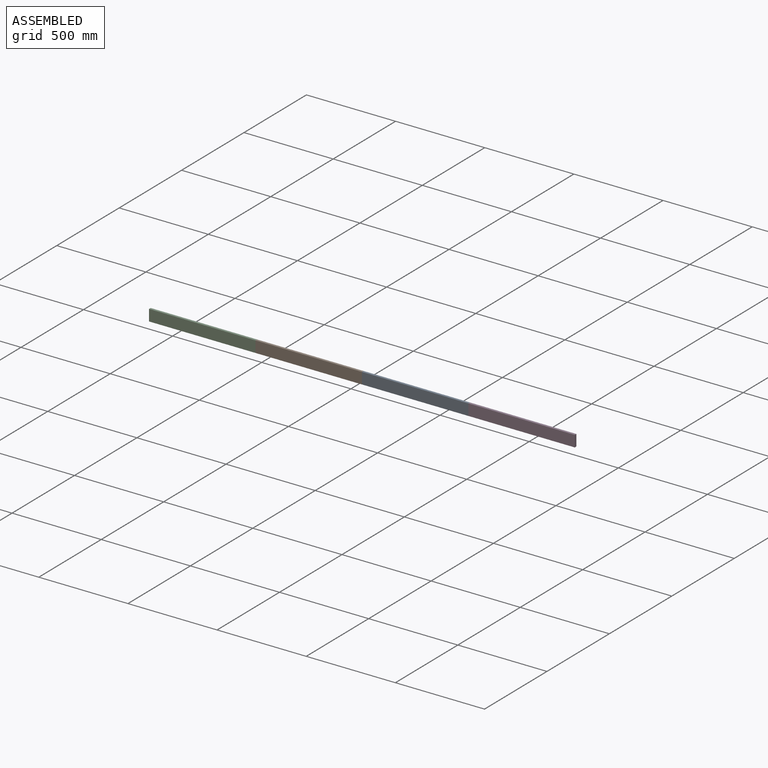
[diagram: assembled view]
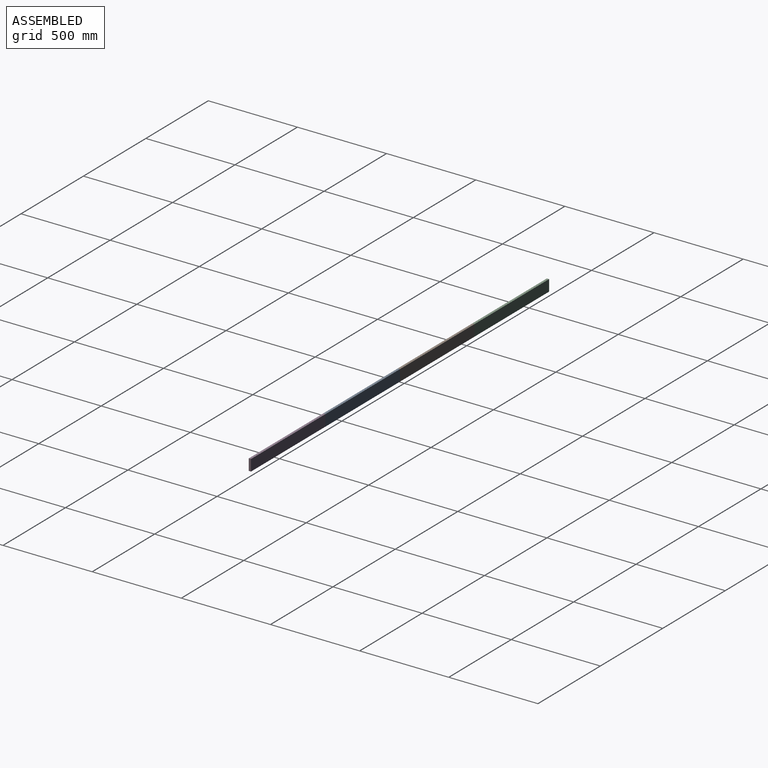
[diagram: assembled view, second angle]
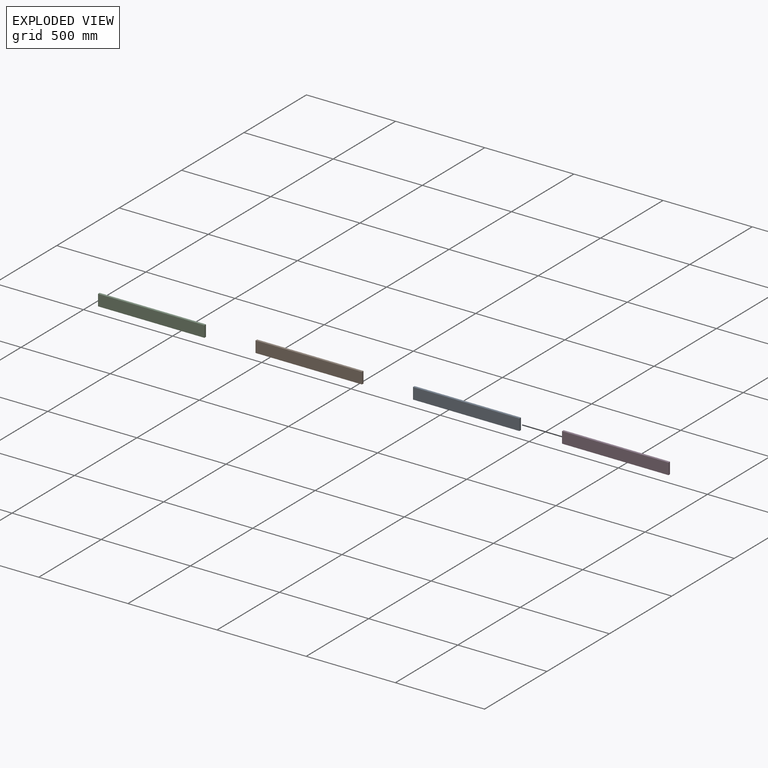
[diagram: exploded view]
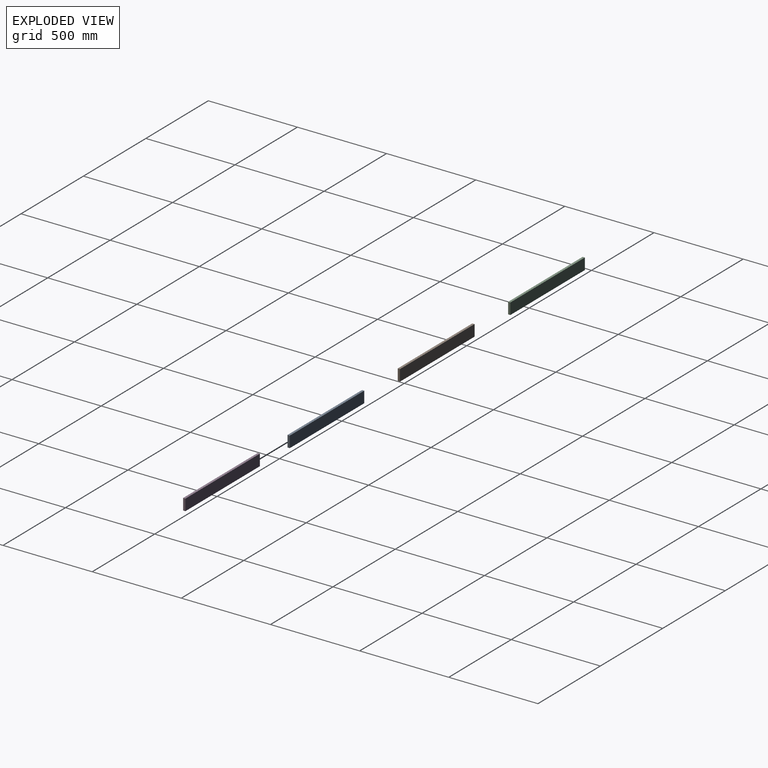
[diagram: exploded view, second angle]
ASSEMBLY  parts=4 mates=3
PART A: 6 faces, bbox 596.9x12.7x63.5 mm
  f0: plane 596.9x12.7mm, normal (0,0,1), area 7580.6mm2, adj f1,f3,f4,f5
  f1: plane 63.5x12.7mm, normal (-1,0,0), area 806.5mm2, adj f0,f2,f4,f5
  f2: plane 596.9x12.7mm, normal (0,0,-1), area 7580.6mm2, adj f1,f3,f4,f5
  f3: plane 63.5x12.7mm, normal (1,0,0), area 806.5mm2, adj f0,f2,f4,f5
  f4: plane 596.9x63.5mm, normal (0,-1,0), area 37903.1mm2, adj f0,f1,f2,f3
  f5: plane 596.9x63.5mm, normal (0,1,0), area 37903.1mm2, adj f0,f1,f2,f3
PART B: same geometry as A
PART C: same geometry as A
PART D: same geometry as A
PLACE A t=(1058.61,17.34,64.3)mm
PLACE B t=(461.71,17.34,64.3)mm
PLACE C t=(-135.19,17.34,64.3)mm fixed
PLACE D t=(1655.51,17.34,64.3)mm
MATE fastened A.f3 <-> D.f1  axis (1,0,0) through (1655.51,17.34,0.8)mm
MATE fastened C.f3 <-> B.f1  axis (1,0,0) through (461.71,17.34,0.8)mm
MATE fastened B.f3 <-> A.f1  axis (1,0,0) through (1058.61,17.34,0.8)mm
